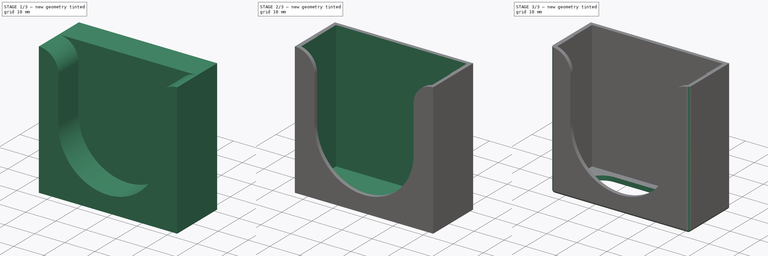
[diagram: build sequence overview — one tinted view per stage of 3, left to right]
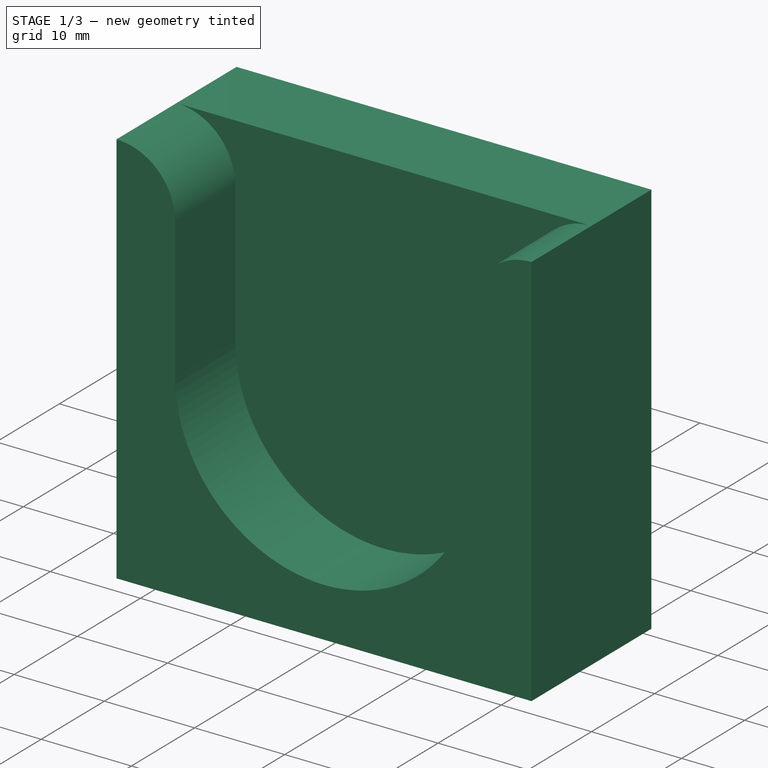
[diagram: stage 1 of 3 — iso view after this stage's code; geometry added in this stage tinted green]
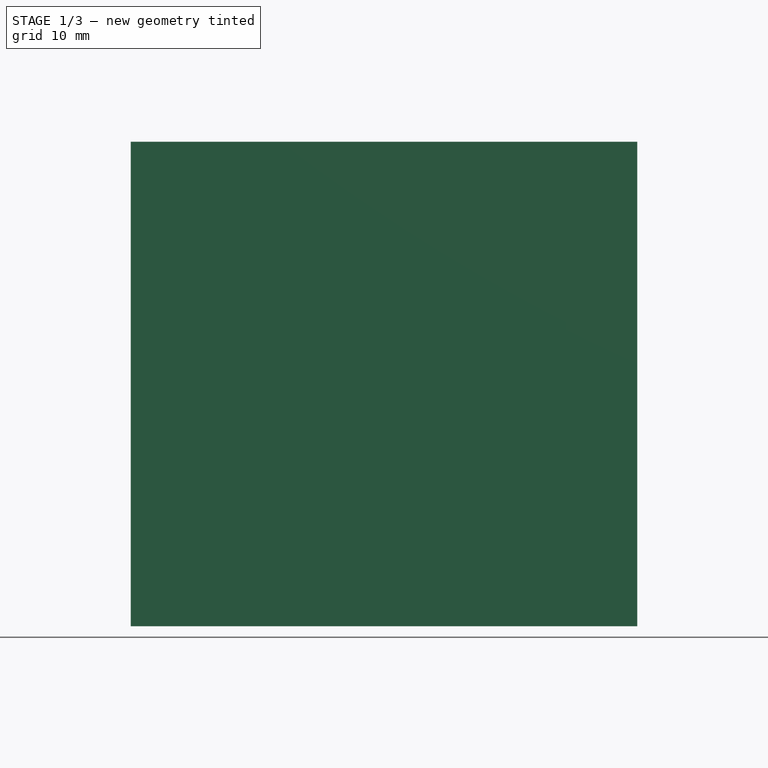
[diagram: stage 1 of 3 — front view after this stage's code; geometry added in this stage tinted green]
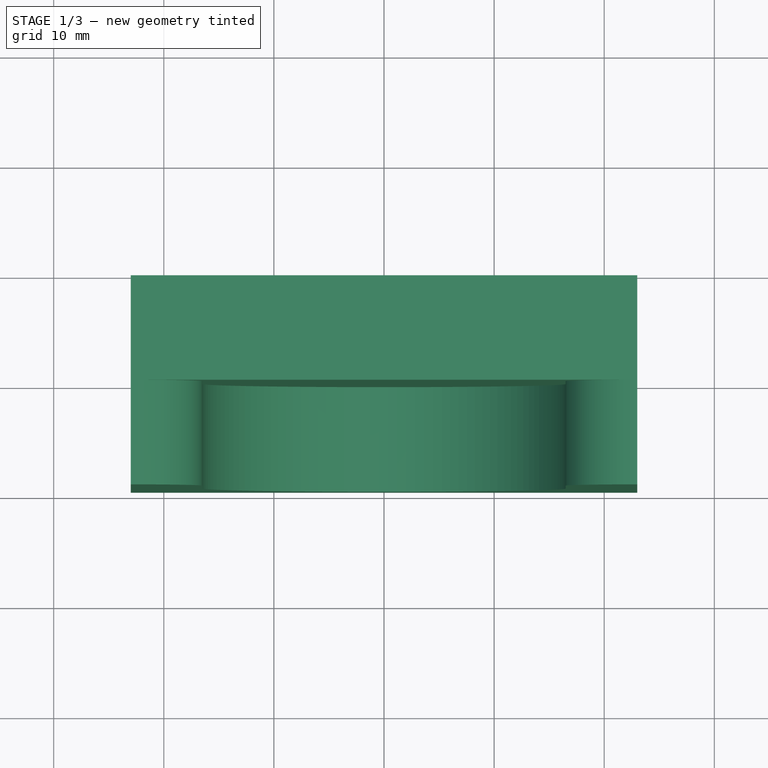
[diagram: stage 1 of 3 — top view after this stage's code; geometry added in this stage tinted green]
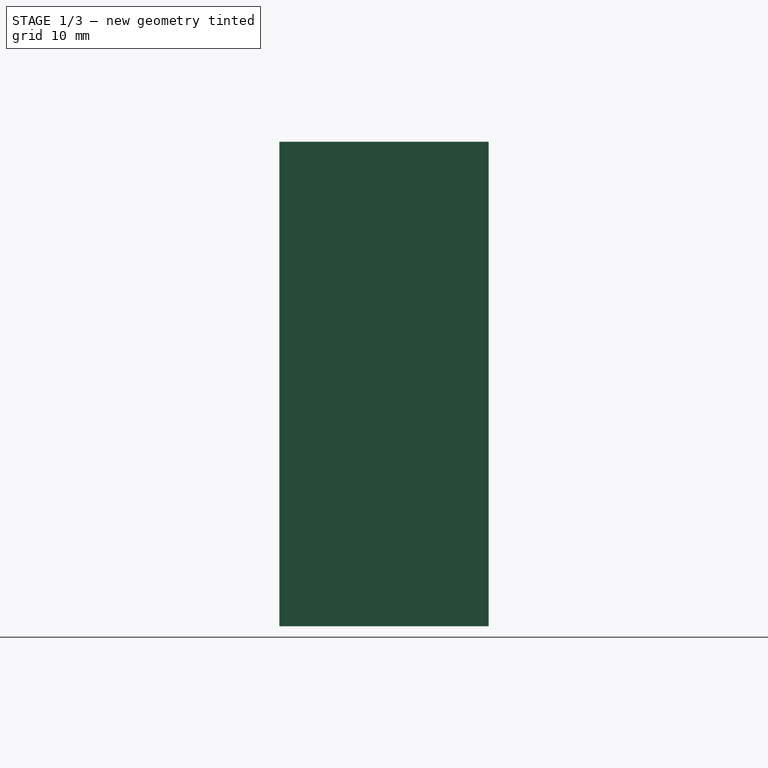
[diagram: stage 1 of 3 — right view after this stage's code; geometry added in this stage tinted green]
FCSTD DOCUMENT  (FreeCAD 0.20R29177 (Git))
Label: SNZB-01
License: Creative Commons Attribution
LicenseURL: http://creativecommons.org/licenses/by/4.0/
objects: Sketcher::SketchObject×4, PartDesign::Pocket×3, PartDesign::Pad×1, PartDesign::Fillet×1, PartDesign::Body×1
note: 15 computed .brp shape members not serialized (recipe doc carries the construction recipe); baked Part::Feature solids carry a one-line shape summary decoded from their .brp

FEATURE [Sketcher::SketchObject] Sketch
  FullyConstrained = true
  MapMode = 5
  Support = -> [XY_Plane]
  expr: Constraints[8] = 43 + 2 + 1
  expr: Constraints[9] = 16 + 2 + 1
  sketch-geometry (4):
    g0: LineSegment StartX=-23 StartY=9.5 StartZ=0 EndX=23 EndY=9.5 EndZ=0
    g1: LineSegment StartX=23 StartY=9.5 StartZ=0 EndX=23 EndY=-9.5 EndZ=0
    g2: LineSegment StartX=23 StartY=-9.5 StartZ=0 EndX=-23 EndY=-9.5 EndZ=0
    g3: LineSegment StartX=-23 StartY=-9.5 StartZ=0 EndX=-23 EndY=9.5 EndZ=0
  constraints (11):
    c: Coincident(g0,g1)
    c: Coincident(g1,g2)
    c: Coincident(g2,g3)
    c: Coincident(g3,g0)
    c: Horizontal(g0)
    c: Horizontal(g2)
    c: Vertical(g1)
    c: Vertical(g3)
    c: DistanceX(g0,g0) = 46
    c: DistanceY(g3,g3) = 19
    c: Symmetric(g0,g1,g-1)
FEATURE [PartDesign::Pad] Pad
  Direction = (0,0,1)
  Length = 44
  Length2 = 10
  Midplane = true
  Profile = -> Sketch
  ReferenceAxis = -> Sketch [N_Axis]
  Refine = true
  Type = 0
  expr: Length = 43 + 1
FEATURE [Sketcher::SketchObject] Sketch001
  ExternalGeometry = -> [Pad]
  FullyConstrained = false
  MapMode = 5
  Placement = pos=(0,0,0) rot=(1,0,0;1.5708rad)
  Support = -> [XZ_Plane]
  expr: Constraints[9] = 43 - 10
  sketch-geometry (10):
    g0: ArcOfCircle CenterX=0 CenterY=0 CenterZ=0 NormalX=0 NormalY=0 NormalZ=1 AngleXU=0 Radius=16.5 StartAngle=3.14159 EndAngle=6.28319
    g1: ArcOfCircle CenterX=-23 CenterY=15.5 CenterZ=0 NormalX=0 NormalY=0 NormalZ=1 AngleXU=0 Radius=6.5 StartAngle=0 EndAngle=1.5708
    g2: LineSegment StartX=-16.5 StartY=15.5 StartZ=0 EndX=-16.5 EndY=0 EndZ=0
    g3: ArcOfCircle CenterX=23 CenterY=15.5 CenterZ=0 NormalX=0 NormalY=0 NormalZ=1 AngleXU=0 Radius=6.5 StartAngle=1.5708 EndAngle=3.14159
    g4: LineSegment StartX=16.5 StartY=15.5 StartZ=0 EndX=16.5 EndY=0 EndZ=0
    g5: LineSegment StartX=-23 StartY=22 StartZ=0 EndX=-24.2732 EndY=22 EndZ=0
    g6: LineSegment StartX=-24.2732 StartY=22 StartZ=0 EndX=-24.2732 EndY=26.5952 EndZ=0
    g7: LineSegment StartX=-24.2732 StartY=26.5952 StartZ=0 EndX=25.7195 EndY=26.5952 EndZ=0
    g8: LineSegment StartX=25.7195 StartY=26.5952 StartZ=0 EndX=25.7195 EndY=22 EndZ=0
    g9: LineSegment StartX=25.7195 StartY=22 StartZ=0 EndX=23 EndY=22 EndZ=0
  constraints (26):
    c: Horizontal(g0,g0)
    c: Horizontal(g0,g0)
    c: Coincident(g0,g-1)
    c: Vertical(g1,g1)
    c: Coincident(g1,g-3)
    c: Horizontal(g1,g1)
    c: Vertical(g1,g0)
    c: Coincident(g2,g1)
    c: Coincident(g2,g0)
    c: DistanceX(g0,g0) = 33
    c: Vertical(g3,g3)
    c: Horizontal(g3,g3)
    c: Coincident(g3,g-3)
    c: Vertical(g3,g0)
    c: Coincident(g4,g3)
    c: Coincident(g4,g0)
    c: Tangent(g1,g5) = -1.5708
    c: Coincident(g5,g6)
    c: Vertical(g6)
    c: Coincident(g6,g7)
    c: Horizontal(g7)
    c: Coincident(g7,g8)
    c: Vertical(g8)
    c: Coincident(g8,g9)
    c: Coincident(g9,g3)
    c: Horizontal(g9)
FEATURE [PartDesign::Pocket] Pocket
  BaseFeature = -> Pad
  Direction = (0,1,-2e-16)
  Length = 10
  Length2 = 8
  Profile = -> Sketch001
  ReferenceAxis = -> Sketch001 [N_Axis]
  Refine = true
  Reversed = true
  Type = 1
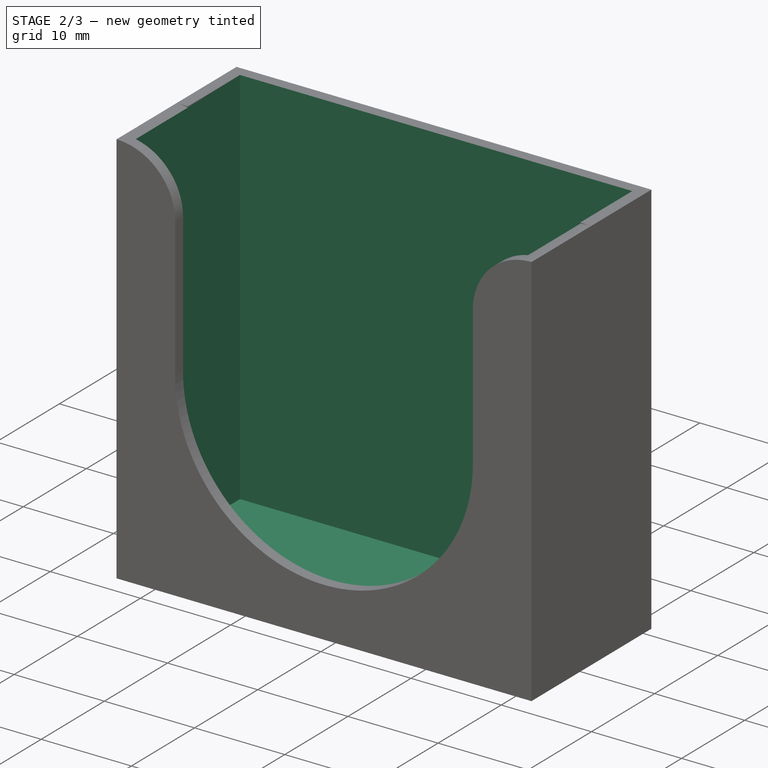
[diagram: stage 2 of 3 — iso view after this stage's code; geometry added in this stage tinted green]
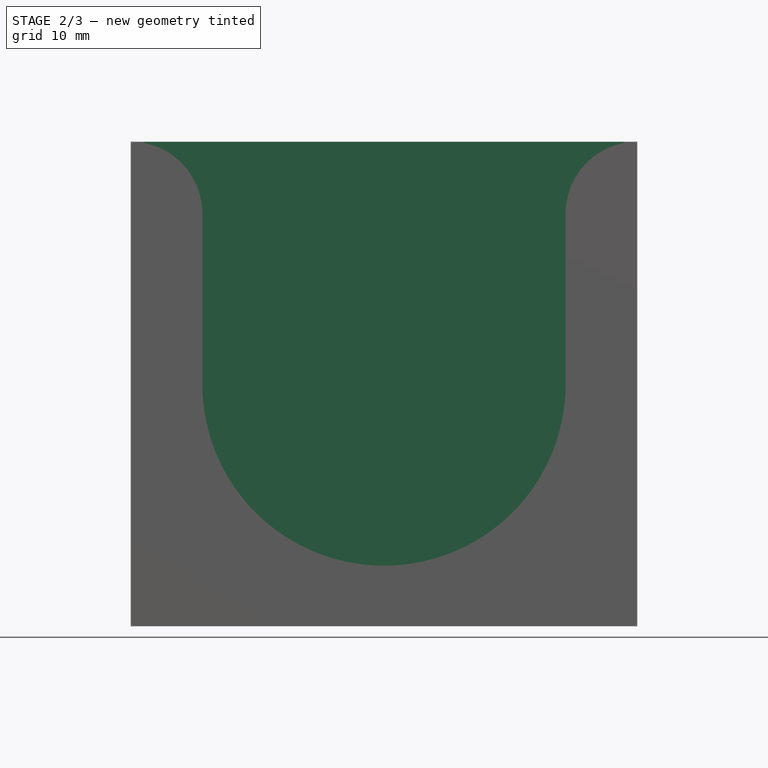
[diagram: stage 2 of 3 — front view after this stage's code; geometry added in this stage tinted green]
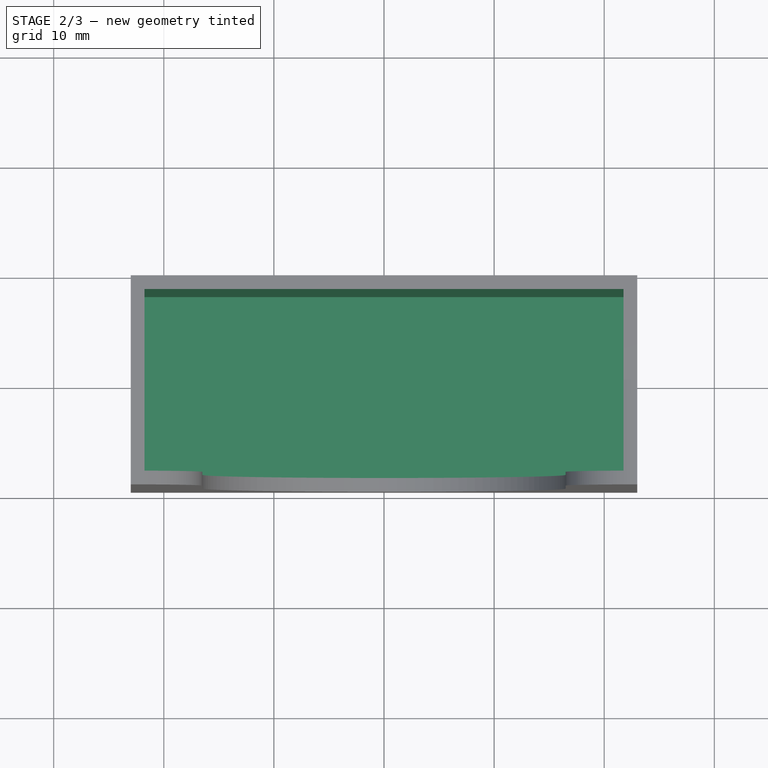
[diagram: stage 2 of 3 — top view after this stage's code; geometry added in this stage tinted green]
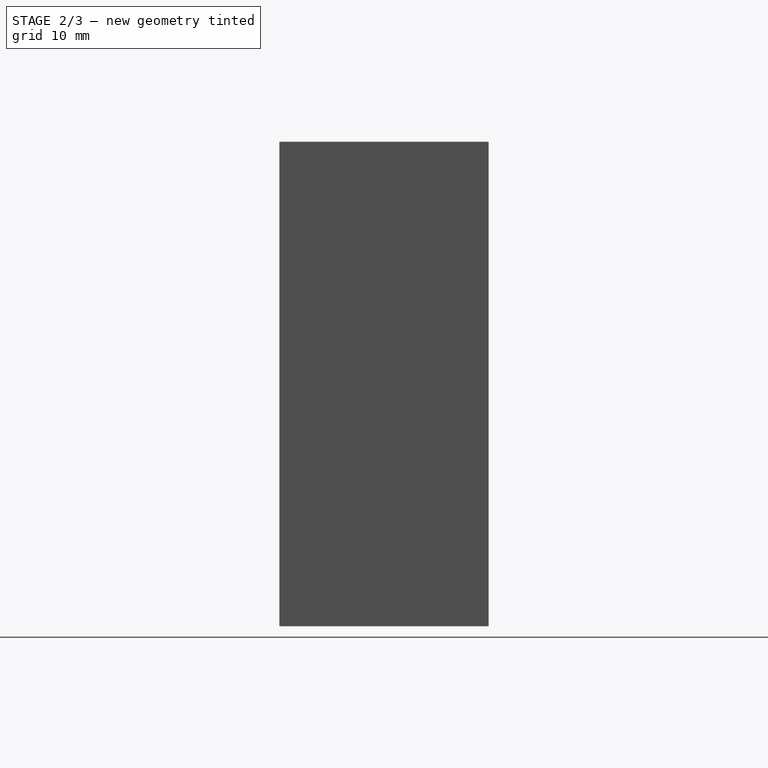
[diagram: stage 2 of 3 — right view after this stage's code; geometry added in this stage tinted green]
FEATURE [Sketcher::SketchObject] Sketch002
  FullyConstrained = true
  MapMode = 5
  Support = -> [XY_Plane]
  sketch-geometry (4):
    g0: LineSegment StartX=-21.75 StartY=8.25 StartZ=0 EndX=21.75 EndY=8.25 EndZ=0
    g1: LineSegment StartX=21.75 StartY=8.25 StartZ=0 EndX=21.75 EndY=-8.25 EndZ=0
    g2: LineSegment StartX=21.75 StartY=-8.25 StartZ=0 EndX=-21.75 EndY=-8.25 EndZ=0
    g3: LineSegment StartX=-21.75 StartY=-8.25 StartZ=0 EndX=-21.75 EndY=8.25 EndZ=0
  constraints (11):
    c: Coincident(g0,g1)
    c: Coincident(g1,g2)
    c: Coincident(g2,g3)
    c: Coincident(g3,g0)
    c: Horizontal(g0)
    c: Horizontal(g2)
    c: Vertical(g1)
    c: Vertical(g3)
    c: Symmetric(g1,g0,g-1)
    c: DistanceY(g3,g3) = 16.5
    c: DistanceX(g0,g0) = 43.5
FEATURE [PartDesign::Pocket] Pocket001
  BaseFeature = -> Pocket
  Direction = (0,0,-1)
  Length = 20.5
  Length2 = 24
  Profile = -> Sketch002
  ReferenceAxis = -> Sketch002 [N_Axis]
  Refine = true
  Type = 4
  expr: Length = 43 / 2 - 1
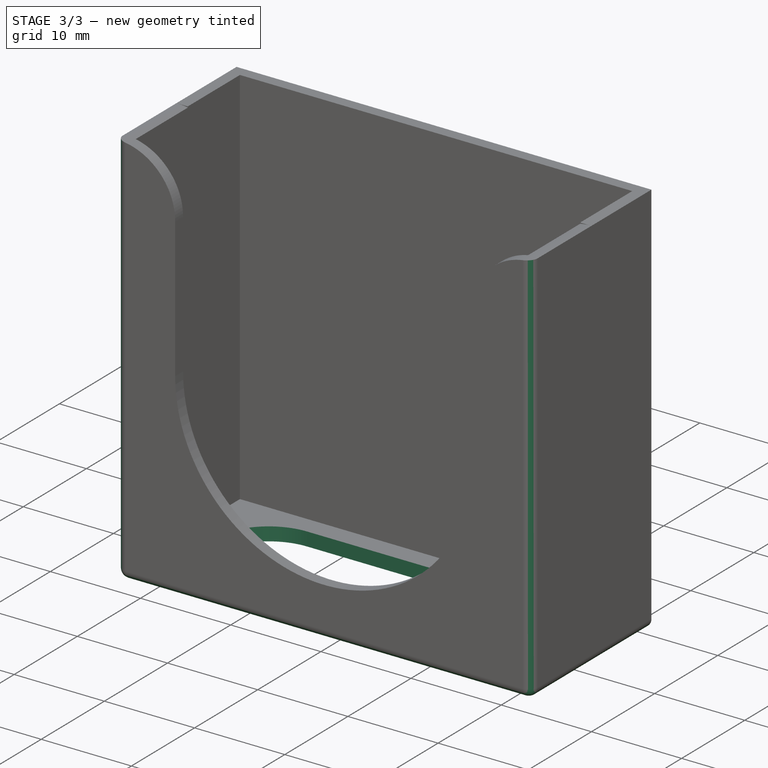
[diagram: stage 3 of 3 — iso view after this stage's code; geometry added in this stage tinted green]
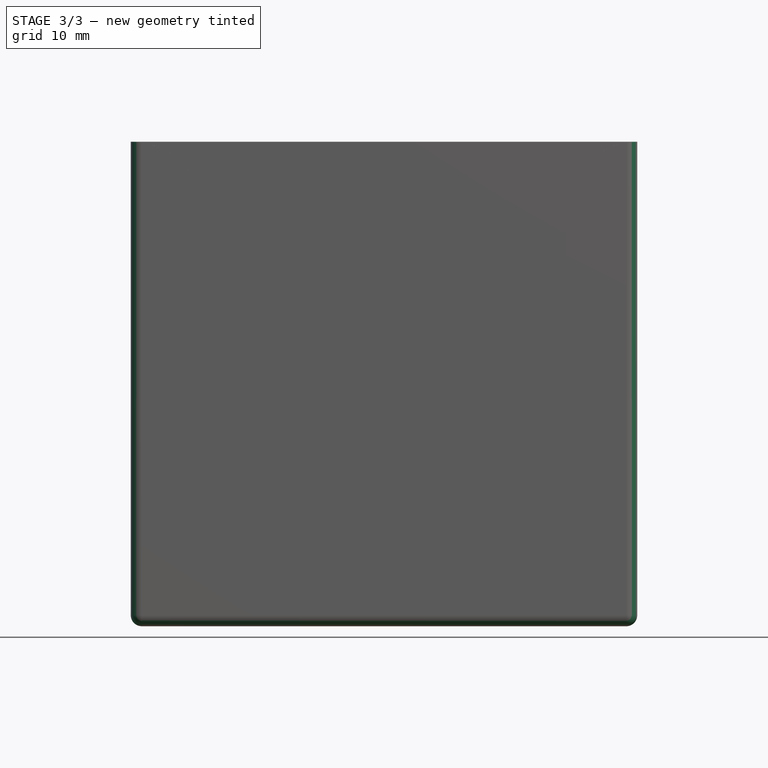
[diagram: stage 3 of 3 — front view after this stage's code; geometry added in this stage tinted green]
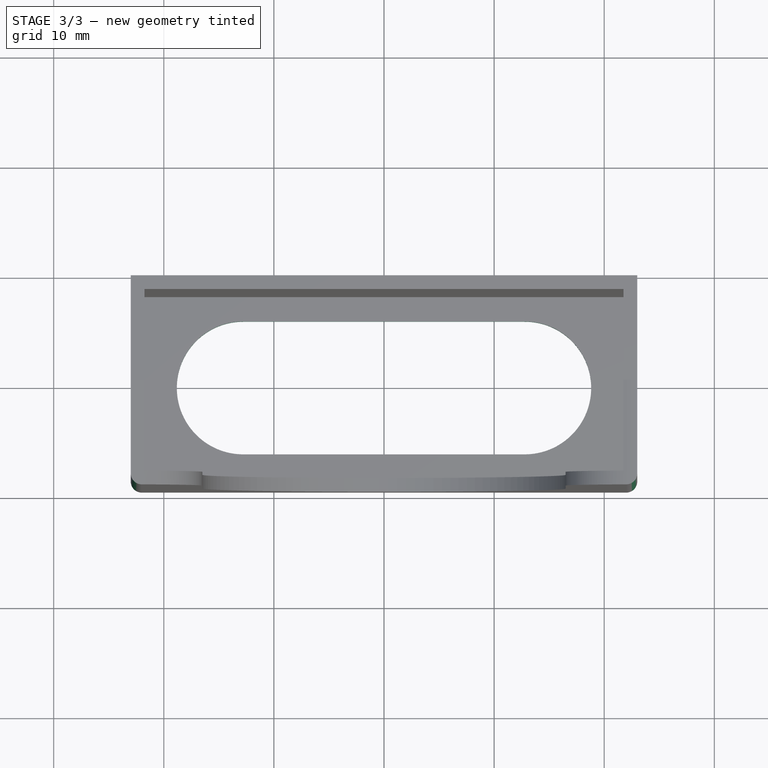
[diagram: stage 3 of 3 — top view after this stage's code; geometry added in this stage tinted green]
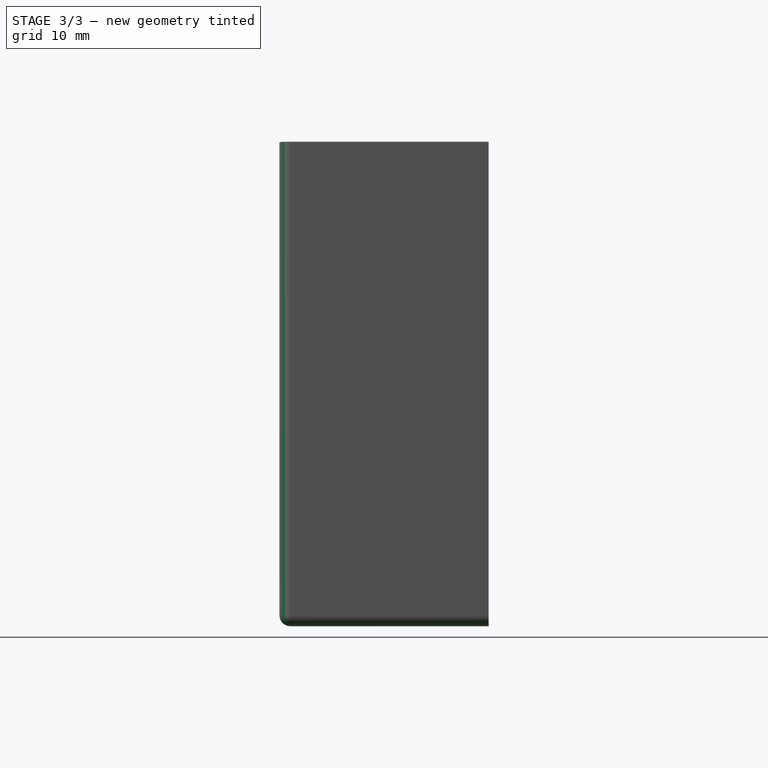
[diagram: stage 3 of 3 — right view after this stage's code; geometry added in this stage tinted green]
FEATURE [Sketcher::SketchObject] Sketch003
  FullyConstrained = false
  MapMode = 5
  Support = -> [XY_Plane]
  sketch-geometry (4):
    g0: ArcOfCircle CenterX=-12.7839 CenterY=2e-16 CenterZ=0 NormalX=0 NormalY=0 NormalZ=1 AngleXU=0 Radius=6.03327 StartAngle=1.5708 EndAngle=4.71239
    g1: ArcOfCircle CenterX=12.7839 CenterY=-2e-16 CenterZ=0 NormalX=0 NormalY=0 NormalZ=1 AngleXU=0 Radius=6.03327 StartAngle=4.71239 EndAngle=7.85398
    g2: LineSegment StartX=-12.7839 StartY=-6.03327 StartZ=0 EndX=12.7839 EndY=-6.03327 EndZ=0
    g3: LineSegment StartX=12.7839 StartY=6.03327 StartZ=0 EndX=-12.7839 EndY=6.03327 EndZ=0
  constraints (7):
    c: Tangent(g0,g2) = -1.5708
    c: Tangent(g2,g1) = -1.5708
    c: Tangent(g1,g3) = -1.5708
    c: Tangent(g3,g0) = -1.5708
    c: Equal(g0,g1)
    c: Horizontal(g2)
    c: Symmetric(g1,g0,g-1)
FEATURE [PartDesign::Pocket] Pocket002
  BaseFeature = -> Pocket001
  Direction = (0,0,-1)
  Length = 5
  Length2 = 5
  Profile = -> Sketch003
  ReferenceAxis = -> Sketch003 [N_Axis]
  Refine = true
  Type = 1
FEATURE [PartDesign::Fillet] Fillet
  Base = -> Pocket002 [Edge5,Edge13,Edge9,Edge10,Edge6]
  BaseFeature = -> Pocket002
  Radius = 1
  Refine = true
  SupportTransform = false
  UseAllEdges = false
FEATURE [PartDesign::Body] Body
  Group = -> [Sketch,Pad,Sketch001,Pocket,Sketch002,Pocket001,Sketch003,Pocket002,Fillet]
  Origin = -> Origin
  Tip = -> Fillet
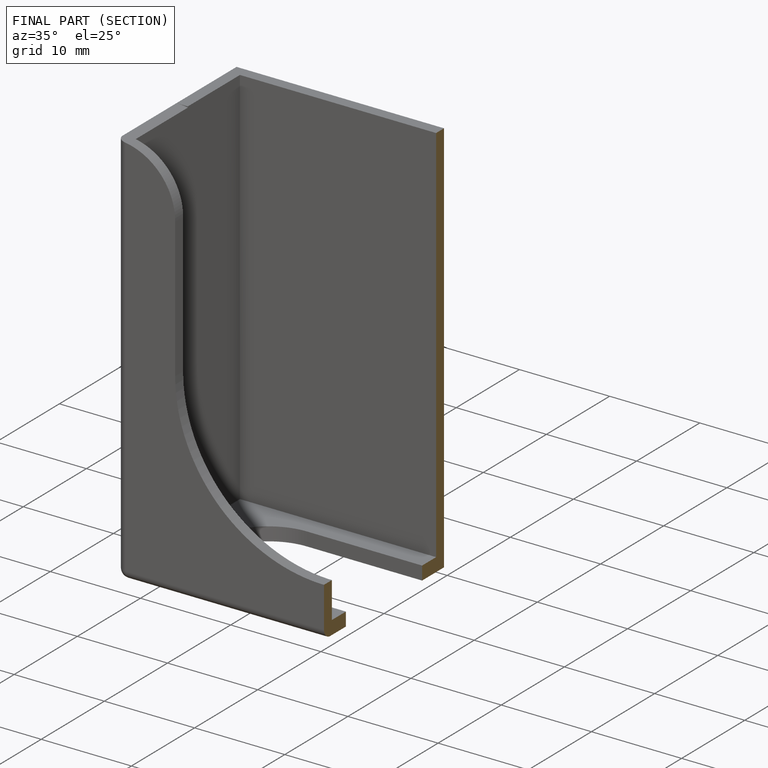
[diagram: finished part — half-section view (interior)]
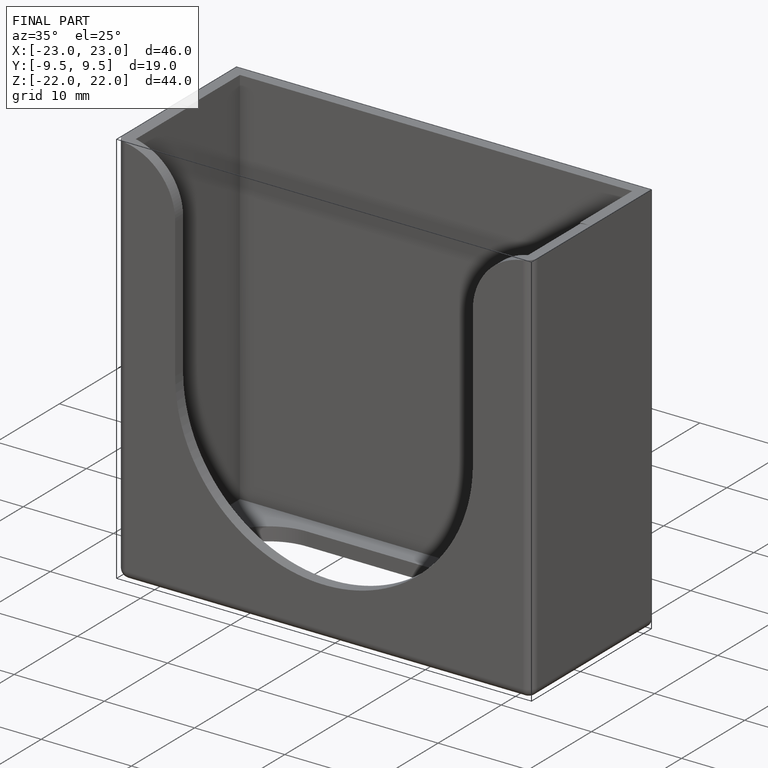
[diagram: finished part — iso view with bounding-box wireframe]
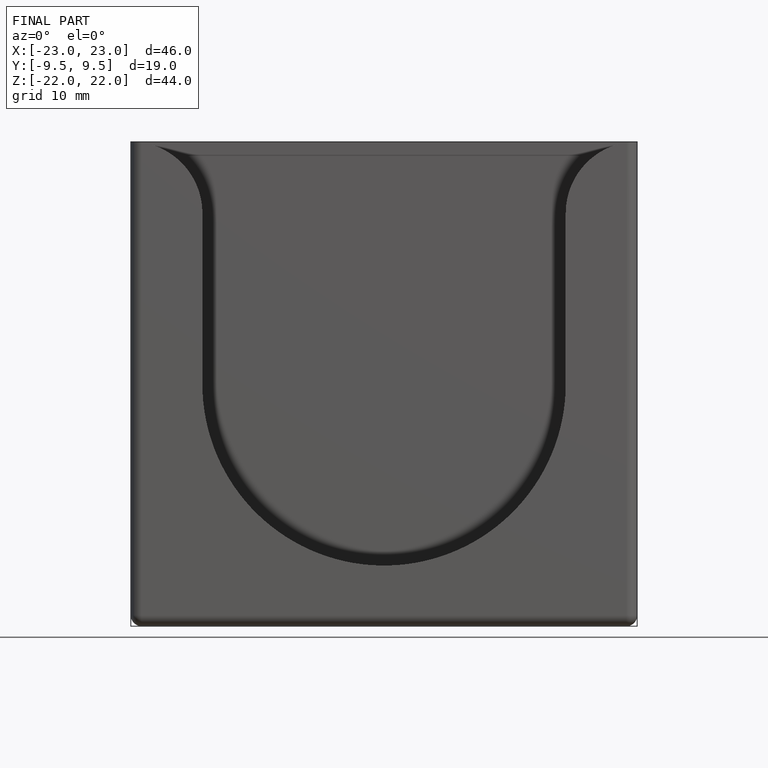
[diagram: finished part — front view with bounding-box wireframe]
